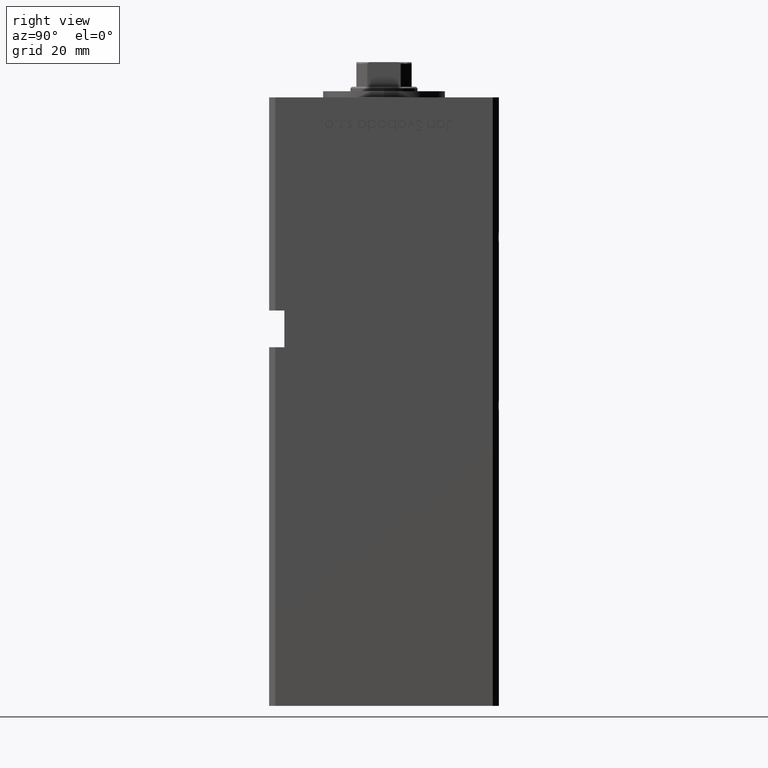
[diagram: clean part render]
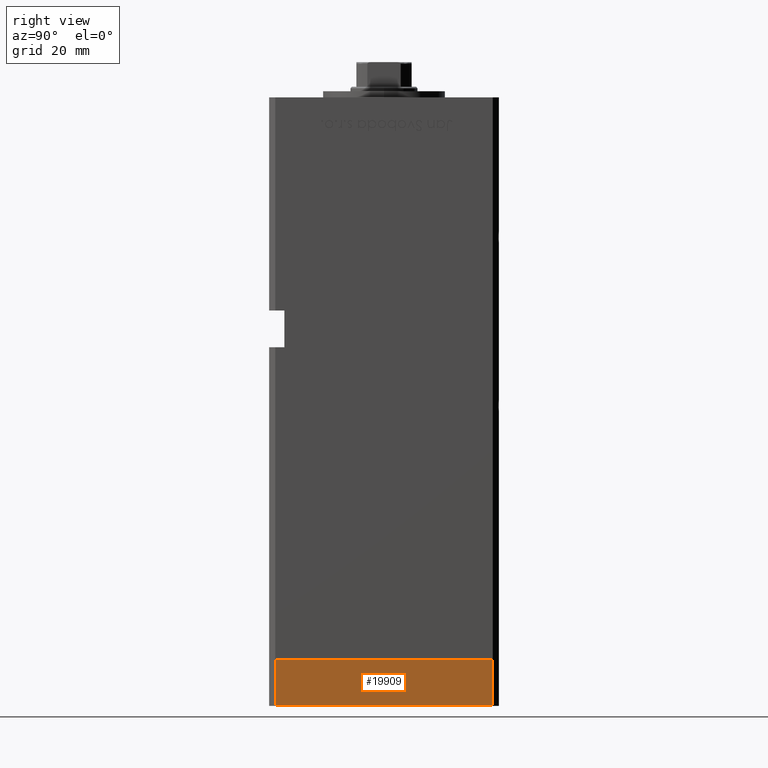
[diagram: same view with one face highlighted and labeled with its STEP entity id]
A machine part, right view. The second image highlights one B-rep face of the part: STEP entity #19909.
In plain terms, the highlighted planar face has unit normal (1, 0, 0).
Its self-contained STEP definition (entity closure, byte-faithful):
#2240 = DIRECTION ( 'NONE',  ( -1.000000000000000000, -9.773090005503140331E-17, 0.000000000000000000 ) ) ;
#3030 = CARTESIAN_POINT ( 'NONE',  ( -42.50000000000000711, 35.49999999999997158, -15.00000000000000000 ) ) ;
#5097 = ORIENTED_EDGE ( 'NONE', *, *, #31561, .T. ) ;
#5351 = CARTESIAN_POINT ( 'NONE',  ( -42.50000000000000000, -35.50000000000000711, -15.00000000000000000 ) ) ;
#7231 = DIRECTION ( 'NONE',  ( 9.773090005503140331E-17, -1.000000000000000000, 0.000000000000000000 ) ) ;
#7291 = ORIENTED_EDGE ( 'NONE', *, *, #10895, .F. ) ;
#7668 = EDGE_CURVE ( 'NONE', #37990, #24140, #25957, .T. ) ;
#8798 = CARTESIAN_POINT ( 'NONE',  ( -42.50000000000000711, 35.49999999999997158, 0.000000000000000000 ) ) ;
#10523 = VECTOR ( 'NONE', #7231, 1000.000000000000000 ) ;
#10895 = EDGE_CURVE ( 'NONE', #26491, #26045, #47372, .T. ) ;
#11332 = CARTESIAN_POINT ( 'NONE',  ( -42.50000000000000711, 35.49999999999997158, -15.00000000000000000 ) ) ;
#14172 = LINE ( 'NONE', #32363, #34597 ) ;
#14369 = FACE_OUTER_BOUND ( 'NONE', #41027, .T. ) ;
#19909 = ADVANCED_FACE ( 'NONE', ( #14369 ), #27260, .T. ) ;
#20206 = VECTOR ( 'NONE', #43875, 1000.000000000000000 ) ;
#24140 = VERTEX_POINT ( 'NONE', #44796 ) ;
#25957 = LINE ( 'NONE', #50697, #51023 ) ;
#26045 = VERTEX_POINT ( 'NONE', #8798 ) ;
#26491 = VERTEX_POINT ( 'NONE', #44995 ) ;
#27260 = PLANE ( 'NONE',  #36893 ) ;
#27689 = LINE ( 'NONE', #44079, #10523 ) ;
#31561 = EDGE_CURVE ( 'NONE', #26491, #37990, #27689, .T. ) ;
#32363 = CARTESIAN_POINT ( 'NONE',  ( -42.50000000000000711, 35.49999999999997158, 0.000000000000000000 ) ) ;
#34597 = VECTOR ( 'NONE', #48756, 1000.000000000000000 ) ;
#34804 = DIRECTION ( 'NONE',  ( 9.773090005503140331E-17, -1.000000000000000000, 0.000000000000000000 ) ) ;
#36893 = AXIS2_PLACEMENT_3D ( 'NONE', #3030, #2240, #34804 ) ;
#37990 = VERTEX_POINT ( 'NONE', #5351 ) ;
#40388 = ORIENTED_EDGE ( 'NONE', *, *, #45092, .F. ) ;
#41027 = EDGE_LOOP ( 'NONE', ( #40388, #7291, #5097, #43359 ) ) ;
#43359 = ORIENTED_EDGE ( 'NONE', *, *, #7668, .T. ) ;
#43875 = DIRECTION ( 'NONE',  ( 0.000000000000000000, 0.000000000000000000, 1.000000000000000000 ) ) ;
#44079 = CARTESIAN_POINT ( 'NONE',  ( -42.50000000000000711, 35.49999999999997158, -15.00000000000000000 ) ) ;
#44796 = CARTESIAN_POINT ( 'NONE',  ( -42.50000000000000000, -35.50000000000000711, 0.000000000000000000 ) ) ;
#44995 = CARTESIAN_POINT ( 'NONE',  ( -42.50000000000000711, 35.49999999999997158, -15.00000000000000000 ) ) ;
#45092 = EDGE_CURVE ( 'NONE', #26045, #24140, #14172, .T. ) ;
#46654 = DIRECTION ( 'NONE',  ( 0.000000000000000000, 0.000000000000000000, 1.000000000000000000 ) ) ;
#47372 = LINE ( 'NONE', #11332, #20206 ) ;
#48756 = DIRECTION ( 'NONE',  ( 9.773090005503140331E-17, -1.000000000000000000, 0.000000000000000000 ) ) ;
#50697 = CARTESIAN_POINT ( 'NONE',  ( -42.50000000000000000, -35.50000000000000711, -15.00000000000000000 ) ) ;
#51023 = VECTOR ( 'NONE', #46654, 1000.000000000000000 ) ;